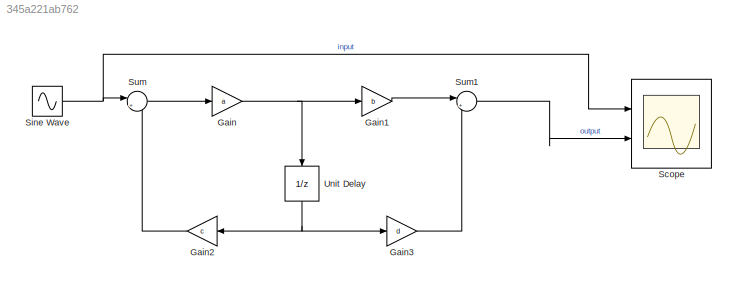
MODEL slx_345a221ab762
KIND model
CONFIG AbsTol = auto
CONFIG EnableMultiTasking = off
CONFIG FixedStep = auto
CONFIG MaxStep = auto
CONFIG MinStep = auto
CONFIG RelTol = 1e-3
CONFIG SampleTimeConstraint = Unconstrained
CONFIG SolverName = VariableStepAuto
CONFIG StartTime = 0.0
CONFIG StopTime = 10.0
WORKSPACE source: mxarray member
WORKSPACE a: Simulink.Parameter (value not decoded)
WORKSPACE b: Simulink.Parameter (value not decoded)
WORKSPACE c: Simulink.Parameter (value not decoded)
WORKSPACE d: Simulink.Parameter (value not decoded)
BLOCK [Gain] Gain
  Gain = a
BLOCK [Gain] Gain1
  Gain = b
BLOCK [Gain] Gain2
  Gain = c
BLOCK [Gain] Gain3
  Gain = d
BLOCK [Scope] Scope
  Floating = off
  NumInputPorts = 2
  Ports = [2]
  ScopeSpecificationString = Simulink.scopes.TimeScopeBlockCfg('CurrentConfiguration', extmgr.ConfigurationSet(extmgr.Configuration('Core','General UI',true),extmgr.Configuration('Core','Source UI',true),extmgr.Configuration('Sources','WiredSimulink',true),extmgr.Configuration('Visuals','Time Domain',true,'SerializedDisplays',{struct('MinYLimReal','-1.18975','MaxYLimReal','0.88561','YLabelReal','','MinYLimMag','0.00000','MaxY...<+2096ch>
BLOCK [Sin] Sine Wave
  Frequency = 9000
  Ports = [0, 1]
  SampleTime = 0
BLOCK [Sum] Sum
  Inputs = |++
  Ports = [2, 1]
BLOCK [Sum] Sum1
  Inputs = |++
  Ports = [2, 1]
BLOCK [UnitDelay] Unit Delay
  HasFrameUpgradeWarning = on
  NameLocation = left
  SampleTime = -1
LINE Gain1:1 -> Sum1:1
LINE Gain2:1 -> Sum:2
LINE Gain3:1 -> Sum1:2
NET Gain:1 -> Gain1:1, Unit Delay:1
NET Sine Wave:1 -> Scope:1, Sum:1
LINE Sum1:1 -> Scope:2
LINE Sum:1 -> Gain:1
NET Unit Delay:1 -> Gain2:1, Gain3:1
note: NET lines group one-source signal fan-out (src -> all destinations, sorted); 1:1 wires keep LINE
